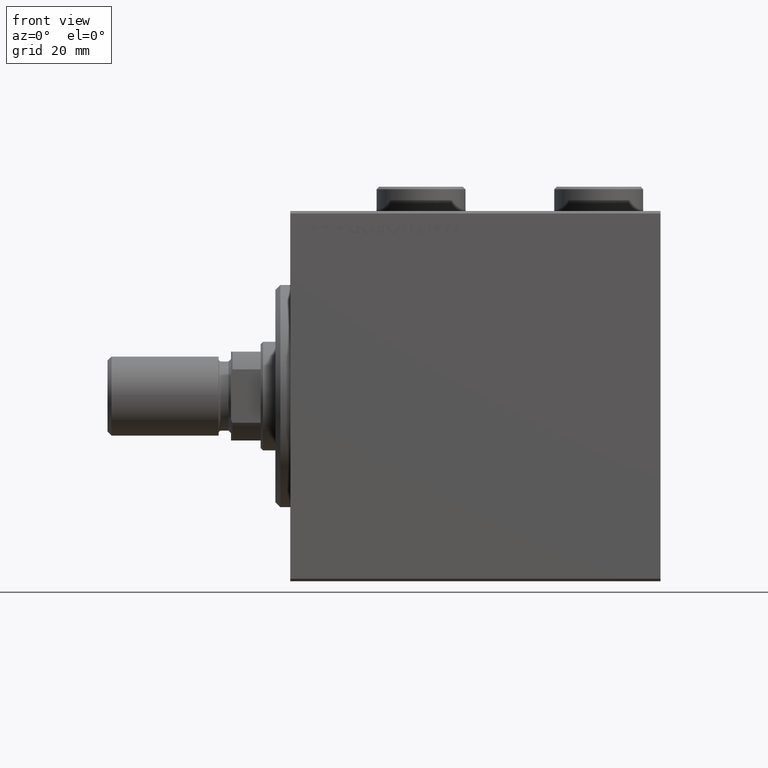
[diagram: clean part render]
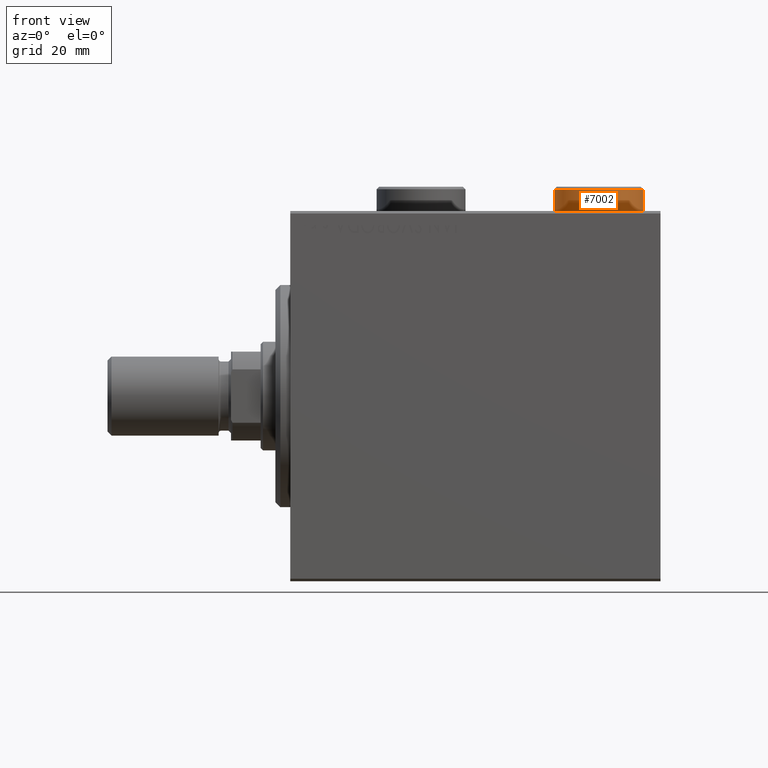
[diagram: same view with one face highlighted and labeled with its STEP entity id]
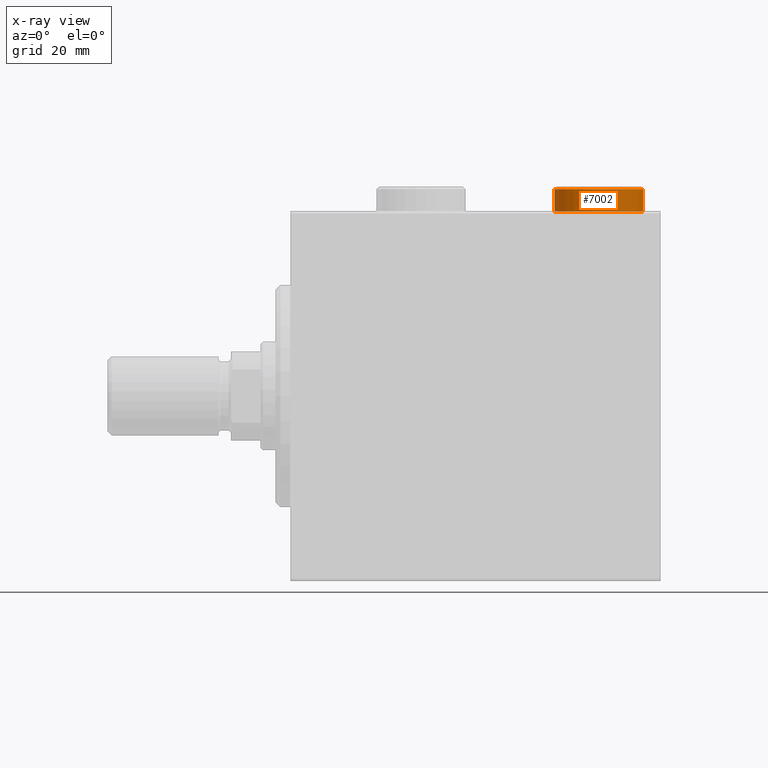
[diagram: x-ray of the same camera — body ghosted, the highlighted face saturated]
A machine part, front view. The second image highlights one B-rep face of the part: STEP entity #7002.
The next image is the same camera in x-ray: the body ghosted, the highlighted face saturated — about 2% of this face is hidden behind the body in this view.
In plain terms, the highlighted cylindrical surface (partial cylindrical patch) has radius 9 mm, axis along (-0, -0, -1).
Its self-contained STEP definition (entity closure, byte-faithful):
#876 = DIRECTION ( 'NONE',  ( 1.000000000000000000, 0.000000000000000000, 0.000000000000000000 ) ) ;
#1541 = CARTESIAN_POINT ( 'NONE',  ( 9.000000000000001776, 1.102182119232617911E-15, 5.000000000000000000 ) ) ;
#3458 = CARTESIAN_POINT ( 'NONE',  ( 0.000000000000000000, 0.000000000000000000, 4.500000000000006217 ) ) ;
#4846 = AXIS2_PLACEMENT_3D ( 'NONE', #3458, #14358, #876 ) ;
#7002 = ADVANCED_FACE ( 'NONE', ( #37640 ), #23435, .T. ) ;
#7646 = AXIS2_PLACEMENT_3D ( 'NONE', #34046, #9383, #15416 ) ;
#8545 = EDGE_CURVE ( 'NONE', #26437, #9269, #27714, .T. ) ;
#9269 = VERTEX_POINT ( 'NONE', #40085 ) ;
#9383 = DIRECTION ( 'NONE',  ( 0.000000000000000000, 0.000000000000000000, 1.000000000000000000 ) ) ;
#10861 = ORIENTED_EDGE ( 'NONE', *, *, #27563, .F. ) ;
#12939 = DIRECTION ( 'NONE',  ( -0.000000000000000000, -0.000000000000000000, -1.000000000000000000 ) ) ;
#13213 = DIRECTION ( 'NONE',  ( -0.000000000000000000, -0.000000000000000000, -1.000000000000000000 ) ) ;
#13396 = ORIENTED_EDGE ( 'NONE', *, *, #19483, .T. ) ;
#13898 = LINE ( 'NONE', #42524, #28861 ) ;
#14358 = DIRECTION ( 'NONE',  ( 0.000000000000000000, 0.000000000000000000, -1.000000000000000000 ) ) ;
#14746 = VECTOR ( 'NONE', #12939, 1000.000000000000000 ) ;
#15416 = DIRECTION ( 'NONE',  ( 1.000000000000000000, 0.000000000000000000, 0.000000000000000000 ) ) ;
#15437 = VERTEX_POINT ( 'NONE', #24355 ) ;
#15771 = AXIS2_PLACEMENT_3D ( 'NONE', #44616, #19485, #30425 ) ;
#16949 = CARTESIAN_POINT ( 'NONE',  ( -9.000000000000001776, 0.000000000000000000, 4.500000000000006217 ) ) ;
#18586 = ORIENTED_EDGE ( 'NONE', *, *, #32964, .T. ) ;
#19483 = EDGE_CURVE ( 'NONE', #15437, #36312, #33846, .T. ) ;
#19485 = DIRECTION ( 'NONE',  ( -0.000000000000000000, -0.000000000000000000, -1.000000000000000000 ) ) ;
#22475 = LINE ( 'NONE', #1541, #14746 ) ;
#23435 = CYLINDRICAL_SURFACE ( 'NONE', #15771, 9.000000000000001776 ) ;
#24355 = CARTESIAN_POINT ( 'NONE',  ( 9.000000000000001776, 1.102182119232617911E-15, 4.500000000000006217 ) ) ;
#26437 = VERTEX_POINT ( 'NONE', #38355 ) ;
#27563 = EDGE_CURVE ( 'NONE', #15437, #9269, #22475, .T. ) ;
#27714 = CIRCLE ( 'NONE', #7646, 9.000000000000001776 ) ;
#28861 = VECTOR ( 'NONE', #13213, 1000.000000000000000 ) ;
#30425 = DIRECTION ( 'NONE',  ( -1.000000000000000000, 0.000000000000000000, 0.000000000000000000 ) ) ;
#32964 = EDGE_CURVE ( 'NONE', #36312, #26437, #13898, .T. ) ;
#33037 = ORIENTED_EDGE ( 'NONE', *, *, #8545, .T. ) ;
#33846 = CIRCLE ( 'NONE', #4846, 9.000000000000001776 ) ;
#34046 = CARTESIAN_POINT ( 'NONE',  ( 0.000000000000000000, 0.000000000000000000, 0.000000000000000000 ) ) ;
#36312 = VERTEX_POINT ( 'NONE', #16949 ) ;
#37640 = FACE_OUTER_BOUND ( 'NONE', #43911, .T. ) ;
#38355 = CARTESIAN_POINT ( 'NONE',  ( -9.000000000000001776, 0.000000000000000000, 0.000000000000000000 ) ) ;
#40085 = CARTESIAN_POINT ( 'NONE',  ( 9.000000000000001776, 1.102182119232617911E-15, 0.000000000000000000 ) ) ;
#42524 = CARTESIAN_POINT ( 'NONE',  ( -9.000000000000001776, 0.000000000000000000, 5.000000000000000000 ) ) ;
#43911 = EDGE_LOOP ( 'NONE', ( #10861, #13396, #18586, #33037 ) ) ;
#44616 = CARTESIAN_POINT ( 'NONE',  ( 0.000000000000000000, 0.000000000000000000, 5.000000000000000000 ) ) ;